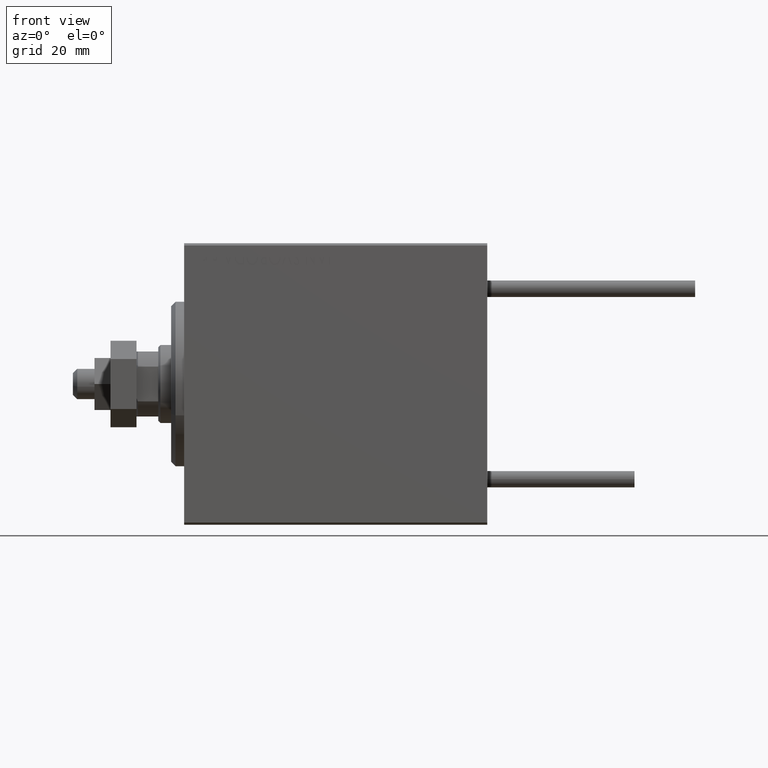
[diagram: clean part render]
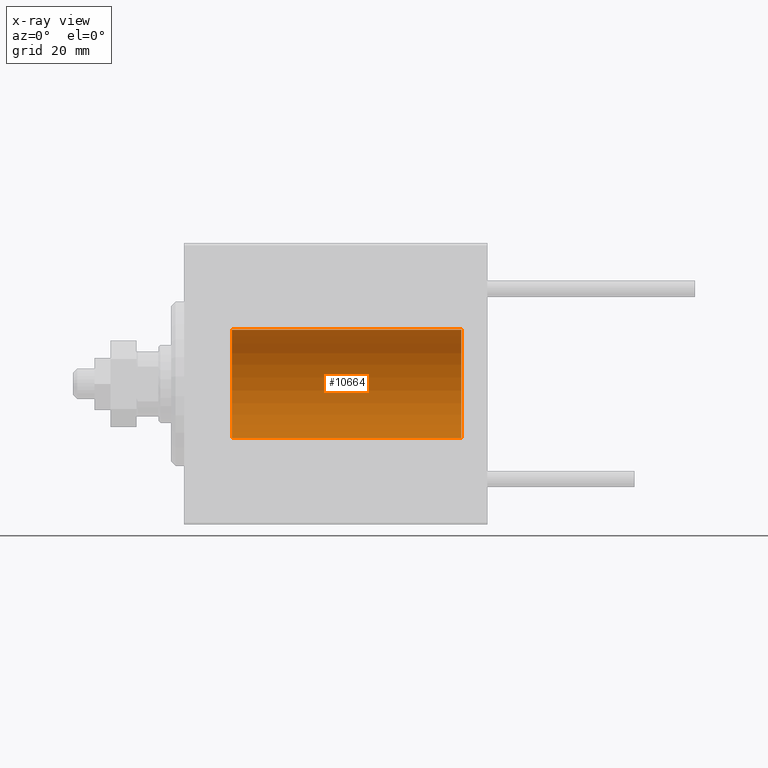
[diagram: x-ray — body ghosted, one internal face saturated and labeled with its STEP entity id]
A machine part, front view, then the same camera in x-ray: the body is ghosted and one INTERNAL B-rep face — a face not visible from any outside direction — is saturated and labeled: STEP entity #10664.
In plain terms, the highlighted cylindrical surface (partial cylindrical patch) has radius 12.5 mm, axis along (-1, -0, -0).
Its self-contained STEP definition (entity closure, byte-faithful):
#8123 = VECTOR ( 'NONE', #25911, 1000.000000000000000 ) ;
#8426 = CARTESIAN_POINT ( 'NONE',  ( 64.00000000000000000, 1.530808498934191521E-15, -12.50000000000000000 ) ) ;
#8930 = DIRECTION ( 'NONE',  ( -1.000000000000000000, -0.000000000000000000, -0.000000000000000000 ) ) ;
#10201 = ORIENTED_EDGE ( 'NONE', *, *, #11536, .T. ) ;
#10664 = ADVANCED_FACE ( 'NONE', ( #47956 ), #36064, .F. ) ;
#10669 = VERTEX_POINT ( 'NONE', #8426 ) ;
#11536 = EDGE_CURVE ( 'NONE', #40038, #26138, #32111, .T. ) ;
#11699 = CARTESIAN_POINT ( 'NONE',  ( 10.99999999999999645, 0.000000000000000000, 0.000000000000000000 ) ) ;
#12543 = CARTESIAN_POINT ( 'NONE',  ( 64.00000000000000000, 0.000000000000000000, 0.000000000000000000 ) ) ;
#15434 = EDGE_LOOP ( 'NONE', ( #38386, #20357, #24010, #10201 ) ) ;
#20357 = ORIENTED_EDGE ( 'NONE', *, *, #30152, .F. ) ;
#20729 = AXIS2_PLACEMENT_3D ( 'NONE', #35311, #8930, #27723 ) ;
#22390 = AXIS2_PLACEMENT_3D ( 'NONE', #11699, #39308, #39065 ) ;
#22840 = LINE ( 'NONE', #42359, #8123 ) ;
#24010 = ORIENTED_EDGE ( 'NONE', *, *, #29918, .T. ) ;
#24975 = EDGE_CURVE ( 'NONE', #10669, #26138, #22840, .T. ) ;
#25911 = DIRECTION ( 'NONE',  ( -1.000000000000000000, -0.000000000000000000, -0.000000000000000000 ) ) ;
#26138 = VERTEX_POINT ( 'NONE', #48364 ) ;
#26804 = CARTESIAN_POINT ( 'NONE',  ( 10.99999999999999645, 0.000000000000000000, 12.50000000000000000 ) ) ;
#27035 = VERTEX_POINT ( 'NONE', #46127 ) ;
#27537 = DIRECTION ( 'NONE',  ( -1.000000000000000000, 0.000000000000000000, 0.000000000000000000 ) ) ;
#27723 = DIRECTION ( 'NONE',  ( 0.000000000000000000, 0.000000000000000000, 1.000000000000000000 ) ) ;
#28846 = LINE ( 'NONE', #48822, #37480 ) ;
#29097 = DIRECTION ( 'NONE',  ( -1.000000000000000000, -0.000000000000000000, -0.000000000000000000 ) ) ;
#29918 = EDGE_CURVE ( 'NONE', #27035, #40038, #28846, .T. ) ;
#30152 = EDGE_CURVE ( 'NONE', #27035, #10669, #31804, .T. ) ;
#31804 = CIRCLE ( 'NONE', #35848, 12.50000000000000000 ) ;
#32111 = CIRCLE ( 'NONE', #22390, 12.50000000000000000 ) ;
#35311 = CARTESIAN_POINT ( 'NONE',  ( 64.00000000000000000, 0.000000000000000000, 0.000000000000000000 ) ) ;
#35848 = AXIS2_PLACEMENT_3D ( 'NONE', #12543, #27537, #39659 ) ;
#36064 = CYLINDRICAL_SURFACE ( 'NONE', #20729, 12.50000000000000000 ) ;
#37480 = VECTOR ( 'NONE', #29097, 1000.000000000000000 ) ;
#38386 = ORIENTED_EDGE ( 'NONE', *, *, #24975, .F. ) ;
#39065 = DIRECTION ( 'NONE',  ( 0.000000000000000000, 0.000000000000000000, 1.000000000000000000 ) ) ;
#39308 = DIRECTION ( 'NONE',  ( -1.000000000000000000, 0.000000000000000000, 0.000000000000000000 ) ) ;
#39659 = DIRECTION ( 'NONE',  ( 0.000000000000000000, 0.000000000000000000, 1.000000000000000000 ) ) ;
#40038 = VERTEX_POINT ( 'NONE', #26804 ) ;
#42359 = CARTESIAN_POINT ( 'NONE',  ( 64.00000000000000000, 1.530808498934191521E-15, -12.50000000000000000 ) ) ;
#46127 = CARTESIAN_POINT ( 'NONE',  ( 64.00000000000000000, 0.000000000000000000, 12.50000000000000000 ) ) ;
#47956 = FACE_OUTER_BOUND ( 'NONE', #15434, .T. ) ;
#48364 = CARTESIAN_POINT ( 'NONE',  ( 10.99999999999999645, 1.530808498934191521E-15, -12.50000000000000000 ) ) ;
#48822 = CARTESIAN_POINT ( 'NONE',  ( 64.00000000000000000, 0.000000000000000000, 12.50000000000000000 ) ) ;